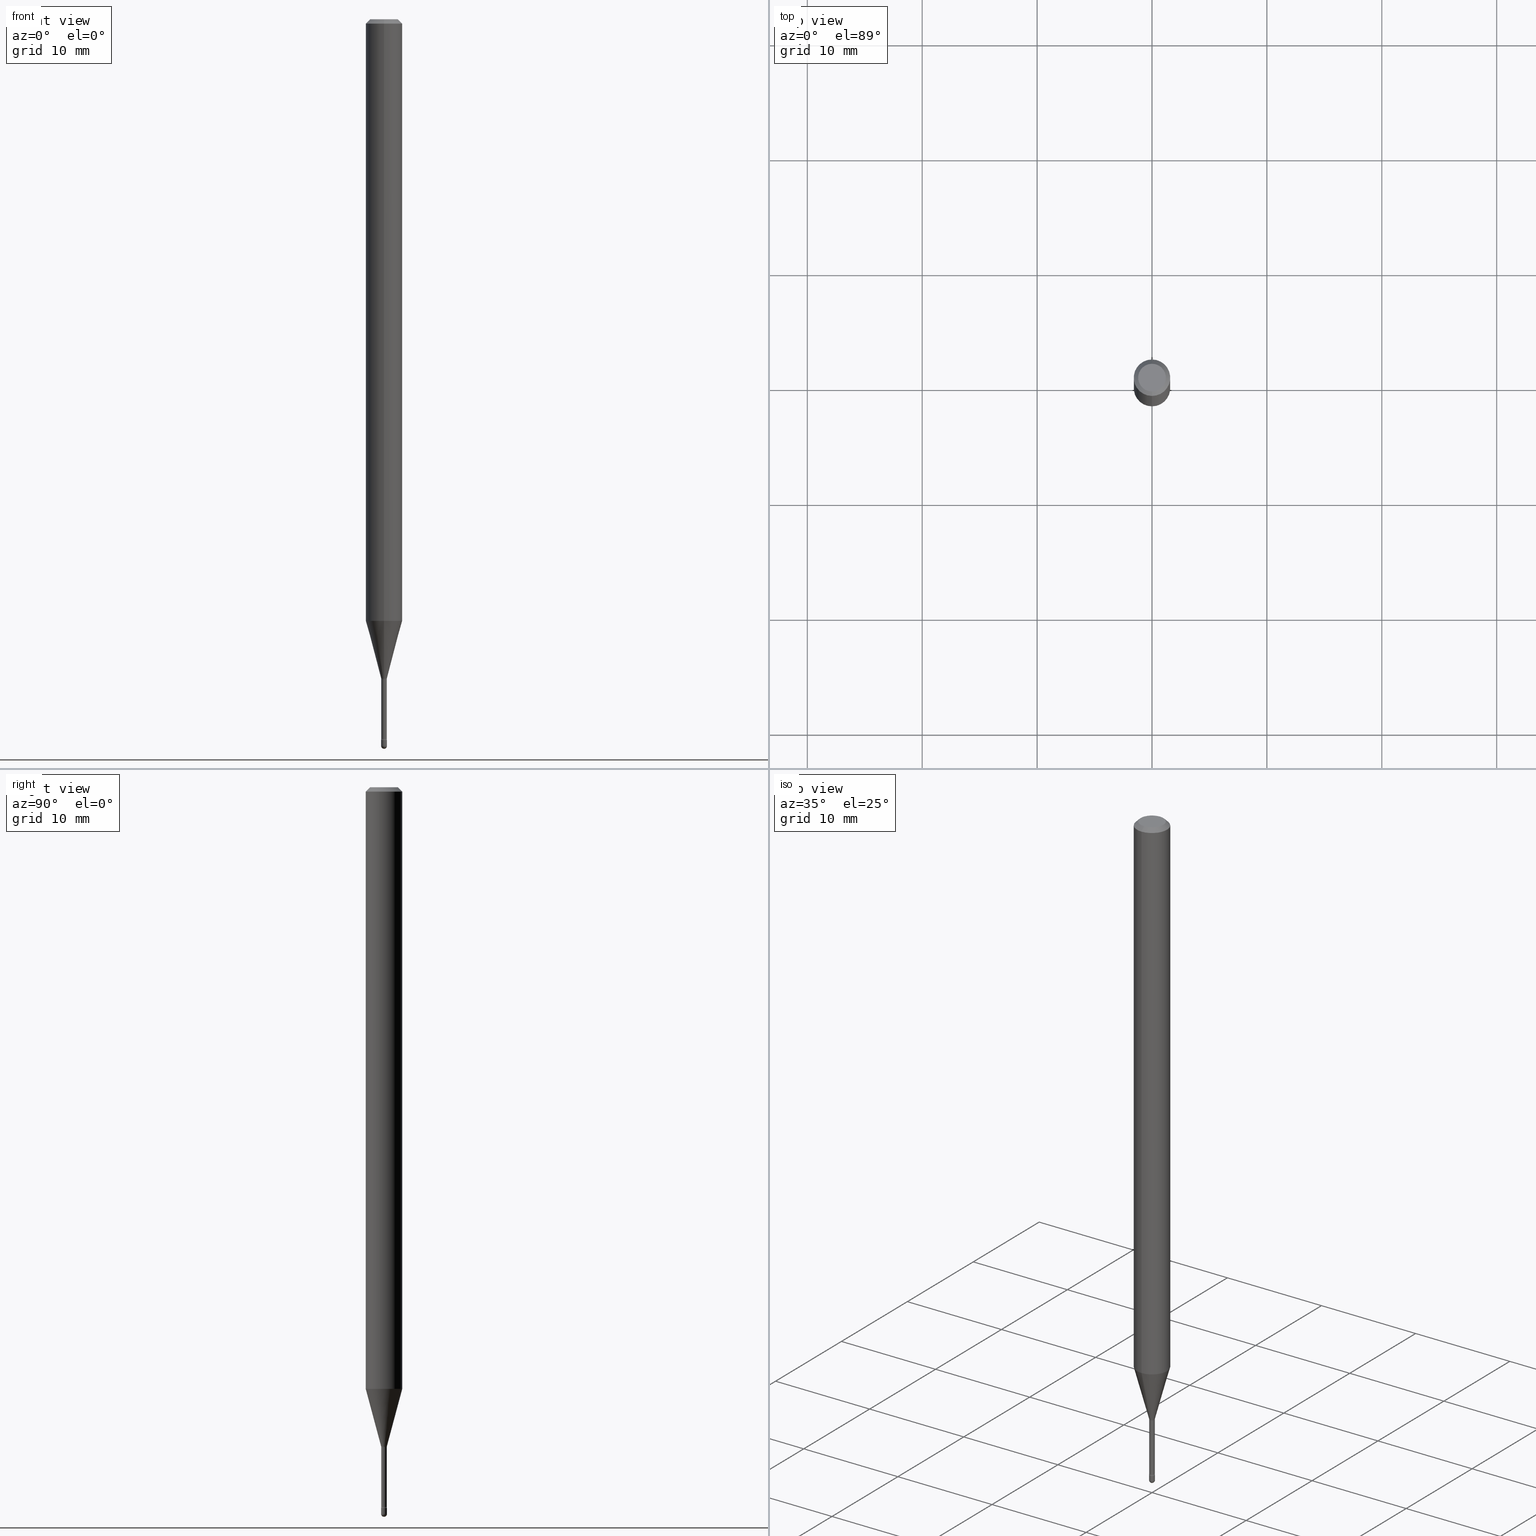
[diagram: canonical four-view strip — front | top / right | iso, engineering-drawing reading convention]
A machine part, canonical four-view strip (front | top / right | iso — engineering-drawing reading convention). The complete STEP part file that produces these views, byte-faithful:
ISO-10303-21;
HEADER;
FILE_DESCRIPTION (( 'STEP AP203' ),
    '1' );
FILE_NAME ('09420.STEP',
    '2024-04-09T22:57:26',
    ( '' ),
    ( '' ),
    'SwSTEP 2.0',
    'SolidWorks 2023',
    '' );
FILE_SCHEMA (( 'CONFIG_CONTROL_DESIGN' ));
ENDSEC;

DATA;
#1 = APPROVAL_STATUS ( 'not_yet_approved' ) ;
#2 = AXIS2_PLACEMENT_3D ( 'NONE', #159, #292, #75 ) ;
#3 = TOROIDAL_SURFACE ( 'NONE', #232, 0.02440000000000002583, 0.01500000000000000291 ) ;
#4 = ORGANIZATION ( 'UNSPECIFIED', 'UNSPECIFIED', '' ) ;
#5 = EDGE_LOOP ( 'NONE', ( #56, #181, #218, #357 ) ) ;
#6 = PERSON_AND_ORGANIZATION ( #463, #4 ) ;
#7 = DIRECTION ( 'NONE',  ( 2.445514680004829566E-29, -3.491415644922369221E-15, -1.000000000000000000 ) ) ;
#8 = CARTESIAN_POINT ( 'NONE',  ( 6.089217327400989947E-29, -8.693788533719431716E-15, -2.489999999999999769 ) ) ;
#9 = COORDINATED_UNIVERSAL_TIME_OFFSET ( 5, 0, .BEHIND. ) ;
#10 = UNCERTAINTY_MEASURE_WITH_UNIT (LENGTH_MEASURE( 1.000000000000000082E-05 ), #272, 'distance_accuracy_value', 'NONE');
#11 = EDGE_CURVE ( 'NONE', #446, #427, #172, .T. ) ;
#12 = APPROVAL ( #231, 'UNSPECIFIED' ) ;
#13 = DIRECTION ( 'NONE',  ( -2.445514680004829566E-29, 3.491415644922369221E-15, 1.000000000000000000 ) ) ;
#14 = DIRECTION ( 'NONE',  ( -2.445468806185136877E-29, 3.491481338843145188E-15, 1.000000000000000000 ) ) ;
#15 = CARTESIAN_POINT ( 'NONE',  ( 3.316907271900976096E-16, 0.04749999999999999362, 3.181938004541935619E-17 ) ) ;
#16 = CONICAL_SURFACE ( 'NONE', #384, 0.06250000000000000000, 0.7853981633974483900 ) ;
#17 = CARTESIAN_POINT ( 'NONE',  ( -1.703842893354895431E-16, -0.02440000000000789454, -2.261974787463811420 ) ) ;
#18 = CIRCLE ( 'NONE', #421, 0.009400000000000002104 ) ;
#19 = SECURITY_CLASSIFICATION_LEVEL ( 'unclassified' ) ;
#20 = CARTESIAN_POINT ( 'NONE',  ( -1.169113584055446105E-44, 1.669184350826100908E-30, 4.780733988912460139E-16 ) ) ;
#21 = PRODUCT_DEFINITION ( 'UNKNOWN', '', #112, #129 ) ;
#22 = CARTESIAN_POINT ( 'NONE',  ( 3.668272020007264791E-31, -5.237123467383583267E-17, -0.01500000000000008271 ) ) ;
#23 = LINE ( 'NONE', #405, #67 ) ;
#24 = DIRECTION ( 'NONE',  ( -1.000000000000000000, 6.982962677686265922E-15, -4.883557194083112340E-29 ) ) ;
#25 = DIRECTION ( 'NONE',  ( 1.839019923739601104E-15, 0.2588190451025250693, 0.9659258262890670910 ) ) ;
#26 = CIRCLE ( 'NONE', #345, 0.01000000000000008347 ) ;
#27 = ORIENTED_EDGE ( 'NONE', *, *, #46, .T. ) ;
#28 = AXIS2_PLACEMENT_3D ( 'NONE', #52, #513, #445 ) ;
#29 = DIRECTION ( 'NONE',  ( -2.445514680004829847E-29, 3.491415644922369221E-15, 1.000000000000000000 ) ) ;
#30 = PERSON_AND_ORGANIZATION ( #463, #4 ) ;
#31 = EDGE_LOOP ( 'NONE', ( #347, #134, #294, #448, #383 ) ) ;
#32 = EDGE_CURVE ( 'NONE', #271, #467, #98, .T. ) ;
#33 = DIRECTION ( 'NONE',  ( -2.445514680004829566E-29, 3.491415644922369221E-15, 1.000000000000000000 ) ) ;
#34 = CARTESIAN_POINT ( 'NONE',  ( 1.733724275255249028E-16, 0.02439999999999141814, -2.465800000000000214 ) ) ;
#35 = ORIENTED_EDGE ( 'NONE', *, *, #78, .T. ) ;
#36 = CARTESIAN_POINT ( 'NONE',  ( -6.982962677680226008E-17, -0.01000000000000862178, -2.470000000000000195 ) ) ;
#37 = ORIENTED_EDGE ( 'NONE', *, *, #422, .F. ) ;
#38 = AXIS2_PLACEMENT_3D ( 'NONE', #329, #489, #528 ) ;
#39 = CARTESIAN_POINT ( 'NONE',  ( 6.089217327400989947E-29, -8.693788533719431716E-15, -2.489999999999999769 ) ) ;
#40 = ADVANCED_FACE ( 'NONE', ( #192 ), #532, .T. ) ;
#41 = PLANE ( 'NONE',  #216 ) ;
#42 = EDGE_CURVE ( 'NONE', #446, #165, #535, .T. ) ;
#43 = EDGE_LOOP ( 'NONE', ( #171, #306, #524, #469 ) ) ;
#44 = DIRECTION ( 'NONE',  ( -2.445468806185136597E-29, 3.491481338843145583E-15, 1.000000000000000000 ) ) ;
#45 = ORIENTED_EDGE ( 'NONE', *, *, #42, .F. ) ;
#46 = EDGE_CURVE ( 'NONE', #74, #437, #301, .T. ) ;
#47 = ORIENTED_EDGE ( 'NONE', *, *, #341, .F. ) ;
#48 = FACE_OUTER_BOUND ( 'NONE', #547, .T. ) ;
#49 = EDGE_CURVE ( 'NONE', #74, #512, #363, .T. ) ;
#50 = LOCAL_TIME ( 18, 57, 26.00000000000000000, #153 ) ;
#51 = ORIENTED_EDGE ( 'NONE', *, *, #104, .T. ) ;
#52 = CARTESIAN_POINT ( 'NONE',  ( -1.169113584055446105E-44, 1.669184350826100908E-30, 4.780733988912460139E-16 ) ) ;
#53 = CARTESIAN_POINT ( 'NONE',  ( 6.030150097955909922E-29, -8.609132697249580284E-15, -2.465800000000000214 ) ) ;
#54 = VERTEX_POINT ( 'NONE', #97 ) ;
#55 = PERSON_AND_ORGANIZATION ( #463, #4 ) ;
#56 = ORIENTED_EDGE ( 'NONE', *, *, #61, .F. ) ;
#57 = APPROVAL_DATE_TIME ( #146, #562 ) ;
#58 = AXIS2_PLACEMENT_3D ( 'NONE', #68, #152, #317 ) ;
#59 = CIRCLE ( 'NONE', #147, 0.009400000000000024655 ) ;
#60 = DIRECTION ( 'NONE',  ( -2.445514680004829566E-29, 3.491415644922369221E-15, 1.000000000000000000 ) ) ;
#61 = EDGE_CURVE ( 'NONE', #54, #343, #498, .T. ) ;
#62 = COORDINATED_UNIVERSAL_TIME_OFFSET ( 5, 0, .BEHIND. ) ;
#63 = DIRECTION ( 'NONE',  ( -2.445514680004829566E-29, 3.491415644922369221E-15, 1.000000000000000000 ) ) ;
#64 = DIRECTION ( 'NONE',  ( 1.000000000000000000, -6.982962677686265922E-15, 4.876176775795935793E-29 ) ) ;
#65 = DIRECTION ( 'NONE',  ( 6.982962677686265922E-15, 1.000000000000000000, -3.483106191921935554E-15 ) ) ;
#66 = EDGE_CURVE ( 'NONE', #96, #165, #110, .T. ) ;
#67 = VECTOR ( 'NONE', #14, 39.37007874015748143 ) ;
#68 = CARTESIAN_POINT ( 'NONE',  ( 2.023886438444584858E-45, -2.888837706566762205E-31, -8.275015253278219790E-17 ) ) ;
#69 = CONICAL_SURFACE ( 'NONE', #141, 0.009911112605663982209, 0.2617993877991502960 ) ;
#70 = FACE_OUTER_BOUND ( 'NONE', #435, .T. ) ;
#71 = EDGE_CURVE ( 'NONE', #131, #437, #548, .T. ) ;
#72 = DIRECTION ( 'NONE',  ( -6.982962677686265922E-15, -1.000000000000000000, 3.491415644922369221E-15 ) ) ;
#73 = DIRECTION ( 'NONE',  ( -6.982962677686265922E-15, -1.000000000000000000, 3.491415644922369221E-15 ) ) ;
#74 = VERTEX_POINT ( 'NONE', #369 ) ;
#75 = DIRECTION ( 'NONE',  ( -7.105427357601000281E-15, -1.000000000000000000, 0.000000000000000000 ) ) ;
#76 = AXIS2_PLACEMENT_3D ( 'NONE', #148, #452, #404 ) ;
#77 = CC_DESIGN_APPROVAL ( #335, ( #112 ) ) ;
#78 = EDGE_CURVE ( 'NONE', #96, #54, #309, .T. ) ;
#79 = ORIENTED_EDGE ( 'NONE', *, *, #124, .T. ) ;
#80 = CARTESIAN_POINT ( 'NONE',  ( 7.042269065260420504E-17, 0.009911112605656097890, -2.258092501787273498 ) ) ;
#81 = CARTESIAN_POINT ( 'NONE',  ( -7.105427357594942569E-17, -0.01000000000000873281, -2.489999999999999769 ) ) ;
#82 = CC_DESIGN_PERSON_AND_ORGANIZATION_ASSIGNMENT ( #6, #252, ( #112 ) ) ;
#83 = ORIENTED_EDGE ( 'NONE', *, *, #316, .F. ) ;
#84 = VECTOR ( 'NONE', #29, 39.37007874015748143 ) ;
#85 = VECTOR ( 'NONE', #168, 39.37007874015748143 ) ;
#86 = CC_DESIGN_APPROVAL ( #12, ( #208 ) ) ;
#87 = EDGE_LOOP ( 'NONE', ( #90, #248, #115, #351, #177 ) ) ;
#88 = CARTESIAN_POINT ( 'NONE',  ( 5.522198361929608993E-29, -7.883939488421979376E-15, -2.258092501787273498 ) ) ;
#89 = DIRECTION ( 'NONE',  ( 1.000000000000000000, -6.982962677686235945E-15, 0.000000000000000000 ) ) ;
#90 = ORIENTED_EDGE ( 'NONE', *, *, #176, .T. ) ;
#91 = CYLINDRICAL_SURFACE ( 'NONE', #28, 0.009400000000000012512 ) ;
#92 = EDGE_LOOP ( 'NONE', ( #137, #304, #542, #397 ) ) ;
#93 = CARTESIAN_POINT ( 'NONE',  ( 6.982962677692383094E-17, 0.009999999999991347407, -2.489999999999999769 ) ) ;
#94 = AXIS2_PLACEMENT_3D ( 'NONE', #186, #44, #178 ) ;
#95 = EDGE_LOOP ( 'NONE', ( #45, #142, #273, #228 ) ) ;
#96 = VERTEX_POINT ( 'NONE', #496 ) ;
#97 = CARTESIAN_POINT ( 'NONE',  ( -3.773273898774340269E-16, -0.04749999999999999362, 8.309209060103030462E-17 ) ) ;
#98 = CIRCLE ( 'NONE', #223, 0.01000000000000000021 ) ;
#99 = FACE_OUTER_BOUND ( 'NONE', #43, .T. ) ;
#100 = VECTOR ( 'NONE', #315, 39.37007874015748143 ) ;
#101 = DIRECTION ( 'NONE',  ( -2.445514680004829566E-29, 3.491415644922369221E-15, 1.000000000000000000 ) ) ;
#102 = CARTESIAN_POINT ( 'NONE',  ( -4.364351673553412809E-16, -0.06250000000000720257, -2.061828102118093309 ) ) ;
#103 = DIRECTION ( 'NONE',  ( -6.982962677686265133E-15, -1.000000000000000000, 0.000000000000000000 ) ) ;
#104 = EDGE_CURVE ( 'NONE', #343, #165, #127, .T. ) ;
#105 = DATE_AND_TIME ( #235, #550 ) ;
#106 = FACE_OUTER_BOUND ( 'NONE', #215, .T. ) ;
#107 = SPHERICAL_SURFACE ( 'NONE', #419, 0.01000000000000008347 ) ;
#108 = CALENDAR_DATE ( 2024, 9, 4 ) ;
#109 = CIRCLE ( 'NONE', #2, 0.01000000000000008347 ) ;
#110 = LINE ( 'NONE', #200, #117 ) ;
#111 = CIRCLE ( 'NONE', #523, 0.01000000000000000021 ) ;
#112 = PRODUCT_DEFINITION_FORMATION_WITH_SPECIFIED_SOURCE ( 'ANY', '', #179, .NOT_KNOWN. ) ;
#113 = DIRECTION ( 'NONE',  ( -6.982962677686265922E-15, -1.000000000000000000, 0.000000000000000000 ) ) ;
#114 = CARTESIAN_POINT ( 'NONE',  ( 6.040307951277287977E-29, -8.623958906942569995E-15, -2.470000000000000195 ) ) ;
#115 = ORIENTED_EDGE ( 'NONE', *, *, #307, .F. ) ;
#116 = ADVANCED_FACE ( 'NONE', ( #457 ), #324, .T. ) ;
#117 = VECTOR ( 'NONE', #402, 39.37007874015748143 ) ;
#118 = AXIS2_PLACEMENT_3D ( 'NONE', #214, #167, #510 ) ;
#119 = ORIENTED_EDGE ( 'NONE', *, *, #133, .F. ) ;
#120 = CC_DESIGN_APPROVAL ( #562, ( #21 ) ) ;
#121 = CARTESIAN_POINT ( 'NONE',  ( 6.040307951277287977E-29, -8.623958906942569995E-15, -2.470000000000000195 ) ) ;
#122 = ORIENTED_EDGE ( 'NONE', *, *, #124, .F. ) ;
#123 = ADVANCED_FACE ( 'NONE', ( #461 ), #107, .T. ) ;
#124 = EDGE_CURVE ( 'NONE', #262, #395, #442, .T. ) ;
#125 = DIRECTION ( 'NONE',  ( 1.000000000000000000, -6.982962677686265922E-15, 4.876176775795935793E-29 ) ) ;
#126 = ORIENTED_EDGE ( 'NONE', *, *, #32, .F. ) ;
#127 = CIRCLE ( 'NONE', #372, 0.06250000000000000000 ) ;
#128 = AXIS2_PLACEMENT_3D ( 'NONE', #39, #24, #374 ) ;
#129 = DESIGN_CONTEXT ( 'detailed design', #546, 'design' ) ;
#130 = DIRECTION ( 'NONE',  ( -6.982962677686265922E-15, -1.000000000000000000, 0.000000000000000000 ) ) ;
#131 = VERTEX_POINT ( 'NONE', #155 ) ;
#132 = MECHANICAL_CONTEXT ( 'NONE', #332, 'mechanical' ) ;
#133 = EDGE_CURVE ( 'NONE', #220, #511, #26, .T. ) ;
#134 = ORIENTED_EDGE ( 'NONE', *, *, #32, .T. ) ;
#135 = ADVANCED_BREP_SHAPE_REPRESENTATION ( '09420', ( #559, #195, #188 ), #364 ) ;
#136 =( NAMED_UNIT ( * ) PLANE_ANGLE_UNIT ( ) SI_UNIT ( $, .RADIAN. ) );
#137 = ORIENTED_EDGE ( 'NONE', *, *, #394, .F. ) ;
#138 = PRODUCT_DEFINITION_SHAPE ( 'NONE', 'NONE',  #21 ) ;
#139 = AXIS2_PLACEMENT_3D ( 'NONE', #366, #256, #298 ) ;
#140 =( NAMED_UNIT ( * ) SI_UNIT ( $, .STERADIAN. ) SOLID_ANGLE_UNIT ( ) );
#141 = AXIS2_PLACEMENT_3D ( 'NONE', #352, #263, #170 ) ;
#142 = ORIENTED_EDGE ( 'NONE', *, *, #11, .T. ) ;
#143 = DIRECTION ( 'NONE',  ( 6.982962677686265922E-15, 1.000000000000000000, 0.000000000000000000 ) ) ;
#144 = CARTESIAN_POINT ( 'NONE',  ( 3.668272020007264791E-31, -5.237123467383583267E-17, -0.01500000000000008271 ) ) ;
#145 = DIRECTION ( 'NONE',  ( -2.445514680004829566E-29, 3.491415644922369221E-15, 1.000000000000000000 ) ) ;
#146 = DATE_AND_TIME ( #276, #268 ) ;
#147 = AXIS2_PLACEMENT_3D ( 'NONE', #491, #501, #113 ) ;
#148 = CARTESIAN_POINT ( 'NONE',  ( 5.531588783120004822E-29, -7.897642759363587821E-15, -2.261974787463811420 ) ) ;
#149 = FACE_OUTER_BOUND ( 'NONE', #312, .T. ) ;
#150 = EDGE_CURVE ( 'NONE', #230, #519, #23, .T. ) ;
#151 = DIRECTION ( 'NONE',  ( 2.445514680004829566E-29, -3.491415644922369221E-15, -1.000000000000000000 ) ) ;
#152 = DIRECTION ( 'NONE',  ( -2.445514680004829566E-29, 3.491415644922369221E-15, 1.000000000000000000 ) ) ;
#153 = COORDINATED_UNIVERSAL_TIME_OFFSET ( 5, 0, .BEHIND. ) ;
#154 = CARTESIAN_POINT ( 'NONE',  ( 7.105427357607040490E-17, 0.009999999999991376898, -2.470000000000000195 ) ) ;
#155 = CARTESIAN_POINT ( 'NONE',  ( 6.679101716150980493E-17, 0.009399999999992103908, -2.261974787463811420 ) ) ;
#156 = DIRECTION ( 'NONE',  ( 1.000000000000000000, -7.105427357601001070E-15, 4.926314704023584056E-29 ) ) ;
#157 = CIRCLE ( 'NONE', #258, 0.04749999999999999362 ) ;
#158 = CARTESIAN_POINT ( 'NONE',  ( 6.679101716144950638E-17, 0.009400000000000012512, 4.452540918289757249E-16 ) ) ;
#159 = CARTESIAN_POINT ( 'NONE',  ( 6.089217327400989947E-29, -8.693788533719431716E-15, -2.489999999999999769 ) ) ;
#160 = ORIENTED_EDGE ( 'NONE', *, *, #11, .F. ) ;
#161 = CARTESIAN_POINT ( 'NONE',  ( -0.01000000000000000021, -8.587819446754991563E-15, -2.489999999999999769 ) ) ;
#162 = EDGE_LOOP ( 'NONE', ( #222, #545, #389, #508 ) ) ;
#163 = CIRCLE ( 'NONE', #139, 0.01000000000000000021 ) ;
#164 = ADVANCED_FACE ( 'NONE', ( #149 ), #16, .T. ) ;
#165 = VERTEX_POINT ( 'NONE', #239 ) ;
#166 = FACE_OUTER_BOUND ( 'NONE', #92, .T. ) ;
#167 = DIRECTION ( 'NONE',  ( -2.445514680004829566E-29, 3.491415644922369221E-15, 1.000000000000000000 ) ) ;
#168 = DIRECTION ( 'NONE',  ( -2.445514680004829847E-29, 3.491415644922369221E-15, 1.000000000000000000 ) ) ;
#169 = ORIENTED_EDGE ( 'NONE', *, *, #418, .F. ) ;
#170 = DIRECTION ( 'NONE',  ( -6.982962677686264344E-15, -1.000000000000000000, 0.000000000000000000 ) ) ;
#171 = ORIENTED_EDGE ( 'NONE', *, *, #500, .F. ) ;
#172 = CIRCLE ( 'NONE', #275, 0.06250000000000000000 ) ;
#173 = AXIS2_PLACEMENT_3D ( 'NONE', #396, #560, #565 ) ;
#174 = AXIS2_PLACEMENT_3D ( 'NONE', #243, #362, #407 ) ;
#175 = DIRECTION ( 'NONE',  ( -2.445514680004829566E-29, 3.491415644922369221E-15, 1.000000000000000000 ) ) ;
#176 = EDGE_CURVE ( 'NONE', #511, #271, #163, .T. ) ;
#177 = ORIENTED_EDGE ( 'NONE', *, *, #341, .T. ) ;
#178 = DIRECTION ( 'NONE',  ( 1.000000000000000000, -6.982962677686235945E-15, 0.000000000000000000 ) ) ;
#179 = PRODUCT ( '09420', '09420', '', ( #132 ) ) ;
#180 = CARTESIAN_POINT ( 'NONE',  ( 0.000000000000000000, 0.000000000000000000, 0.000000000000000000 ) ) ;
#181 = ORIENTED_EDGE ( 'NONE', *, *, #78, .F. ) ;
#182 = PERSON_AND_ORGANIZATION ( #463, #4 ) ;
#183 = ORIENTED_EDGE ( 'NONE', *, *, #408, .F. ) ;
#184 = EDGE_CURVE ( 'NONE', #512, #446, #296, .T. ) ;
#185 = AXIS2_PLACEMENT_3D ( 'NONE', #371, #145, #459 ) ;
#186 = CARTESIAN_POINT ( 'NONE',  ( 6.089217327400989947E-29, -8.693788533719431716E-15, -2.489999999999999769 ) ) ;
#187 = CIRCLE ( 'NONE', #373, 0.01500000000000002373 ) ;
#188 = AXIS2_PLACEMENT_3D ( 'NONE', #219, #260, #436 ) ;
#189 = VERTEX_POINT ( 'NONE', #247 ) ;
#190 = APPROVAL_ROLE ( '' ) ;
#191 = DIRECTION ( 'NONE',  ( -2.445514680004829566E-29, 3.491415644922369221E-15, 1.000000000000000000 ) ) ;
#192 = FACE_OUTER_BOUND ( 'NONE', #95, .T. ) ;
#193 = COORDINATED_UNIVERSAL_TIME_OFFSET ( 5, 0, .BEHIND. ) ;
#194 = CARTESIAN_POINT ( 'NONE',  ( 6.089217327400989947E-29, -8.693788533719431716E-15, -2.489999999999999769 ) ) ;
#195 = MANIFOLD_SOLID_BREP ( 'Body-Move/Copy2[2]', #318 ) ;
#196 = PERSON_AND_ORGANIZATION ( #463, #4 ) ;
#197 = CIRCLE ( 'NONE', #412, 0.009400000000000024655 ) ;
#198 = CARTESIAN_POINT ( 'NONE',  ( -6.563984917019559422E-17, -0.009400000000007898565, -2.261974787463811420 ) ) ;
#199 = CC_DESIGN_SECURITY_CLASSIFICATION ( #208, ( #112 ) ) ;
#200 = CARTESIAN_POINT ( 'NONE',  ( 4.364351673553919652E-16, 0.06249999999999995143, -0.01500000000000030129 ) ) ;
#201 = DATE_TIME_ROLE ( 'creation_date' ) ;
#202 = PLANE ( 'NONE',  #355 ) ;
#203 = CARTESIAN_POINT ( 'NONE',  ( -4.287811248607203282E-16, -0.06250000000000005551, -0.01499999999999986587 ) ) ;
#204 = DIRECTION ( 'NONE',  ( 6.982962677686265922E-15, 1.000000000000000000, -3.483106191921935554E-15 ) ) ;
#205 = DIRECTION ( 'NONE',  ( -6.982962677686265922E-15, -1.000000000000000000, 4.370956789862821150E-15 ) ) ;
#206 = DIRECTION ( 'NONE',  ( 1.000000000000000000, -6.982962677686235945E-15, 0.000000000000000000 ) ) ;
#207 = AXIS2_PLACEMENT_3D ( 'NONE', #356, #477, #390 ) ;
#208 = SECURITY_CLASSIFICATION ( '', '', #19 ) ;
#209 = ORIENTED_EDGE ( 'NONE', *, *, #314, .F. ) ;
#210 = PERSON_AND_ORGANIZATION_ROLE ( 'creator' ) ;
#211 = ORIENTED_EDGE ( 'NONE', *, *, #289, .T. ) ;
#212 = DIRECTION ( 'NONE',  ( -6.982962677686265922E-15, -1.000000000000000000, 3.491415644922369221E-15 ) ) ;
#213 = ADVANCED_FACE ( 'NONE', ( #339 ), #426, .T. ) ;
#214 = CARTESIAN_POINT ( 'NONE',  ( 5.042230891376295236E-29, -7.198698892875708228E-15, -2.061828102118093753 ) ) ;
#215 = EDGE_LOOP ( 'NONE', ( #35, #555 ) ) ;
#216 = AXIS2_PLACEMENT_3D ( 'NONE', #114, #217, #125 ) ;
#217 = DIRECTION ( 'NONE',  ( -2.438088387897960049E-29, 3.491481338843145188E-15, 1.000000000000000000 ) ) ;
#218 = ORIENTED_EDGE ( 'NONE', *, *, #66, .T. ) ;
#219 = CARTESIAN_POINT ( 'NONE',  ( 0.000000000000000000, 0.000000000000000000, 0.000000000000000000 ) ) ;
#220 = VERTEX_POINT ( 'NONE', #433 ) ;
#221 = LENGTH_MEASURE_WITH_UNIT ( LENGTH_MEASURE( 0.02539999999999999897 ), #305 );
#222 = ORIENTED_EDGE ( 'NONE', *, *, #325, .F. ) ;
#223 = AXIS2_PLACEMENT_3D ( 'NONE', #194, #410, #242 ) ;
#224 = AXIS2_PLACEMENT_3D ( 'NONE', #88, #175, #486 ) ;
#225 = ORIENTED_EDGE ( 'NONE', *, *, #254, .F. ) ;
#226 = DIRECTION ( 'NONE',  ( -6.982962677686264344E-15, -1.000000000000000000, 0.000000000000000000 ) ) ;
#227 = CC_DESIGN_PERSON_AND_ORGANIZATION_ASSIGNMENT ( #182, #554, ( #179 ) ) ;
#228 = ORIENTED_EDGE ( 'NONE', *, *, #428, .F. ) ;
#229 = CARTESIAN_POINT ( 'NONE',  ( 2.572559502513586973E-16, 0.009911112605656097890, -2.258092501787273498 ) ) ;
#230 = VERTEX_POINT ( 'NONE', #376 ) ;
#231 = APPROVAL_STATUS ( 'not_yet_approved' ) ;
#232 = AXIS2_PLACEMENT_3D ( 'NONE', #295, #33, #212 ) ;
#233 = DIRECTION ( 'NONE',  ( -6.982962677686265922E-15, -1.000000000000000000, 3.491415644922369221E-15 ) ) ;
#234 = CARTESIAN_POINT ( 'NONE',  ( 3.668272020007264791E-31, -5.237123467383583267E-17, -0.01500000000000008271 ) ) ;
#235 = CALENDAR_DATE ( 2024, 9, 4 ) ;
#236 = DIRECTION ( 'NONE',  ( -6.982962677686265922E-15, -1.000000000000000000, 3.483106191921935554E-15 ) ) ;
#237 = DIRECTION ( 'NONE',  ( -1.000000000000000000, 6.982962677686265922E-15, -4.883557194083112340E-29 ) ) ;
#238 = PERSON_AND_ORGANIZATION ( #463, #4 ) ;
#239 = CARTESIAN_POINT ( 'NONE',  ( 4.440892098501133005E-16, 0.06249999999999995143, -0.01500000000000030129 ) ) ;
#240 = AXIS2_PLACEMENT_3D ( 'NONE', #382, #293, #466 ) ;
#241 = DIRECTION ( 'NONE',  ( 7.105427357600999492E-15, 1.000000000000000000, 0.000000000000000000 ) ) ;
#242 = DIRECTION ( 'NONE',  ( 1.000000000000000000, -6.982962677686235945E-15, 0.000000000000000000 ) ) ;
#243 = CARTESIAN_POINT ( 'NONE',  ( 5.531588783120004822E-29, -7.897642759363587821E-15, -2.261974787463811420 ) ) ;
#244 = ADVANCED_FACE ( 'NONE', ( #251 ), #41, .T. ) ;
#245 = DIRECTION ( 'NONE',  ( -2.445514680004829847E-29, 3.491415644922369221E-15, 1.000000000000000000 ) ) ;
#246 = EDGE_CURVE ( 'NONE', #220, #467, #109, .T. ) ;
#247 = CARTESIAN_POINT ( 'NONE',  ( -6.563984917019076245E-17, -0.009400000000008634088, -2.465800000000000214 ) ) ;
#248 = ORIENTED_EDGE ( 'NONE', *, *, #393, .T. ) ;
#249 = CLOSED_SHELL ( 'NONE', ( #116, #470, #244, #123, #342 ) ) ;
#250 = VECTOR ( 'NONE', #493, 39.37007874015748143 ) ;
#251 = FACE_OUTER_BOUND ( 'NONE', #377, .T. ) ;
#252 = PERSON_AND_ORGANIZATION_ROLE ( 'creator' ) ;
#253 = EDGE_CURVE ( 'NONE', #427, #343, #429, .T. ) ;
#254 = EDGE_CURVE ( 'NONE', #481, #395, #474, .T. ) ;
#255 = ADVANCED_FACE ( 'NONE', ( #379 ), #299, .T. ) ;
#256 = DIRECTION ( 'NONE',  ( -2.445468806185136597E-29, 3.491481338843145583E-15, 1.000000000000000000 ) ) ;
#257 = ORIENTED_EDGE ( 'NONE', *, *, #104, .F. ) ;
#258 = AXIS2_PLACEMENT_3D ( 'NONE', #279, #13, #282 ) ;
#259 = ORIENTED_EDGE ( 'NONE', *, *, #520, .F. ) ;
#260 = DIRECTION ( 'NONE',  ( 0.000000000000000000, 0.000000000000000000, 1.000000000000000000 ) ) ;
#261 = CC_DESIGN_DATE_AND_TIME_ASSIGNMENT ( #361, #287, ( #208 ) ) ;
#262 = VERTEX_POINT ( 'NONE', #36 ) ;
#263 = DIRECTION ( 'NONE',  ( -2.445514680004829566E-29, 3.491415644922369221E-15, 1.000000000000000000 ) ) ;
#264 = FACE_OUTER_BOUND ( 'NONE', #31, .T. ) ;
#265 = ORIENTED_EDGE ( 'NONE', *, *, #307, .T. ) ;
#266 = ORIENTED_EDGE ( 'NONE', *, *, #49, .F. ) ;
#267 = AXIS2_PLACEMENT_3D ( 'NONE', #368, #191, #527 ) ;
#268 = LOCAL_TIME ( 18, 57, 26.00000000000000000, #449 ) ;
#269 = DIRECTION ( 'NONE',  ( -2.445514680004829566E-29, 3.491415644922369221E-15, 1.000000000000000000 ) ) ;
#270 = CC_DESIGN_DATE_AND_TIME_ASSIGNMENT ( #400, #201, ( #21 ) ) ;
#271 = VERTEX_POINT ( 'NONE', #161 ) ;
#272 =( CONVERSION_BASED_UNIT ( 'INCH', #221 ) LENGTH_UNIT ( ) NAMED_UNIT ( #425 ) );
#273 = ORIENTED_EDGE ( 'NONE', *, *, #253, .T. ) ;
#274 = DIRECTION ( 'NONE',  ( -4.851104656540964275E-15, -0.7071067811865500152, -0.7071067811865450192 ) ) ;
#275 = AXIS2_PLACEMENT_3D ( 'NONE', #308, #485, #205 ) ;
#276 = CALENDAR_DATE ( 2024, 9, 4 ) ;
#277 = CONICAL_SURFACE ( 'NONE', #337, 0.009911112605663982209, 0.2617993877991502960 ) ;
#278 = LOCAL_TIME ( 18, 57, 26.00000000000000000, #193 ) ;
#279 = CARTESIAN_POINT ( 'NONE',  ( 2.023886438444584858E-45, -2.888837706566762205E-31, -8.275015253278219790E-17 ) ) ;
#280 = DIRECTION ( 'NONE',  ( 6.982962677686265133E-15, 1.000000000000000000, 0.000000000000000000 ) ) ;
#281 = PERSON_AND_ORGANIZATION ( #463, #4 ) ;
#282 = DIRECTION ( 'NONE',  ( -6.982962677686266711E-15, -1.000000000000000000, 3.491415644922368827E-15 ) ) ;
#283 = DIRECTION ( 'NONE',  ( -2.445514680004829566E-29, 3.491415644922369221E-15, 1.000000000000000000 ) ) ;
#284 = CALENDAR_DATE ( 2024, 9, 4 ) ;
#285 = CARTESIAN_POINT ( 'NONE',  ( 1.733724275255197259E-16, 0.02439999999999210162, -2.261974787463811420 ) ) ;
#286 = DIRECTION ( 'NONE',  ( -6.982962677686265922E-15, -1.000000000000000000, 0.000000000000000000 ) ) ;
#287 = DATE_TIME_ROLE ( 'classification_date' ) ;
#288 = AXIS2_PLACEMENT_3D ( 'NONE', #478, #561, #89 ) ;
#289 = EDGE_CURVE ( 'NONE', #427, #446, #514, .T. ) ;
#290 = DIRECTION ( 'NONE',  ( -6.982962677686265922E-15, -1.000000000000000000, 3.483106191921935554E-15 ) ) ;
#291 = DIRECTION ( 'NONE',  ( 6.982962677686265922E-15, 1.000000000000000000, -3.491415644922369221E-15 ) ) ;
#292 = DIRECTION ( 'NONE',  ( -1.000000000000000000, 7.105427357601001070E-15, -4.926315508542082329E-29 ) ) ;
#293 = DIRECTION ( 'NONE',  ( -1.000000000000000000, 6.982962677686265922E-15, -4.883557194083112340E-29 ) ) ;
#294 = ORIENTED_EDGE ( 'NONE', *, *, #520, .T. ) ;
#295 = CARTESIAN_POINT ( 'NONE',  ( 6.030036982291310238E-29, -8.609294685319429365E-15, -2.465800000000000214 ) ) ;
#296 = LINE ( 'NONE', #80, #460 ) ;
#297 = ORIENTED_EDGE ( 'NONE', *, *, #246, .F. ) ;
#298 = DIRECTION ( 'NONE',  ( 1.000000000000000000, -6.982962677686235945E-15, 0.000000000000000000 ) ) ;
#299 = CYLINDRICAL_SURFACE ( 'NONE', #330, 0.009400000000000012512 ) ;
#300 = ORIENTED_EDGE ( 'NONE', *, *, #253, .F. ) ;
#301 = CIRCLE ( 'NONE', #522, 0.01500000000000002373 ) ;
#302 = CIRCLE ( 'NONE', #288, 0.01000000000000000021 ) ;
#303 = ORIENTED_EDGE ( 'NONE', *, *, #500, .T. ) ;
#304 = ORIENTED_EDGE ( 'NONE', *, *, #254, .T. ) ;
#305 =( LENGTH_UNIT ( ) NAMED_UNIT ( * ) SI_UNIT ( $, .METRE. ) );
#306 = ORIENTED_EDGE ( 'NONE', *, *, #408, .T. ) ;
#307 = EDGE_CURVE ( 'NONE', #519, #392, #111, .T. ) ;
#308 = CARTESIAN_POINT ( 'NONE',  ( 5.042230891376295236E-29, -7.198698892875708228E-15, -2.061828102118093753 ) ) ;
#309 = CIRCLE ( 'NONE', #58, 0.04749999999999999362 ) ;
#310 = AXIS2_PLACEMENT_3D ( 'NONE', #331, #365, #233 ) ;
#311 = APPROVAL_PERSON_ORGANIZATION ( #238, #12, #190 ) ;
#312 = EDGE_LOOP ( 'NONE', ( #336, #564, #51, #480 ) ) ;
#313 = LINE ( 'NONE', #506, #475 ) ;
#314 = EDGE_CURVE ( 'NONE', #189, #437, #313, .T. ) ;
#315 = DIRECTION ( 'NONE',  ( -1.807323732225330928E-15, -0.2588190451025182970, 0.9659258262890689783 ) ) ;
#316 = EDGE_CURVE ( 'NONE', #437, #131, #18, .T. ) ;
#317 = DIRECTION ( 'NONE',  ( -6.982962677686266711E-15, -1.000000000000000000, 3.491415644922368827E-15 ) ) ;
#318 = CLOSED_SHELL ( 'NONE', ( #434, #255, #487, #164, #213, #507, #539, #40, #387, #406, #403, #479, #515, #378 ) ) ;
#319 = TOROIDAL_SURFACE ( 'NONE', #174, 0.02439999999999999808, 0.01500000000000002200 ) ;
#320 = APPROVAL_DATE_TIME ( #529, #335 ) ;
#321 = DIRECTION ( 'NONE',  ( 1.000000000000000000, -6.982962677686265922E-15, 4.876176775795935793E-29 ) ) ;
#322 = CARTESIAN_POINT ( 'NONE',  ( 3.668272020007264791E-31, -5.237123467383583267E-17, -0.01500000000000008271 ) ) ;
#323 = CARTESIAN_POINT ( 'NONE',  ( -0.01000000000000000021, -8.587819446754991563E-15, -2.470000000000000195 ) ) ;
#324 = CYLINDRICAL_SURFACE ( 'NONE', #509, 0.01000000000000000021 ) ;
#325 = EDGE_CURVE ( 'NONE', #481, #131, #386, .T. ) ;
#326 = EDGE_CURVE ( 'NONE', #189, #262, #556, .T. ) ;
#327 = PERSON_AND_ORGANIZATION_ROLE ( 'classification_officer' ) ;
#328 = FACE_OUTER_BOUND ( 'NONE', #518, .T. ) ;
#329 = CARTESIAN_POINT ( 'NONE',  ( 5.531692548543555666E-29, -7.897494161371103074E-15, -2.261974787463811420 ) ) ;
#330 = AXIS2_PLACEMENT_3D ( 'NONE', #333, #502, #416 ) ;
#331 = CARTESIAN_POINT ( 'NONE',  ( 6.982962677692306673E-17, 0.009999999999991375163, -2.470000000000000195 ) ) ;
#332 = APPLICATION_CONTEXT ( 'configuration controlled 3d designs of mechanical parts and assemblies' ) ;
#333 = CARTESIAN_POINT ( 'NONE',  ( -1.169113584055446105E-44, 1.669184350826100908E-30, 4.780733988912460139E-16 ) ) ;
#334 = EDGE_CURVE ( 'NONE', #189, #481, #197, .T. ) ;
#335 = APPROVAL ( #533, 'UNSPECIFIED' ) ;
#336 = ORIENTED_EDGE ( 'NONE', *, *, #440, .F. ) ;
#337 = AXIS2_PLACEMENT_3D ( 'NONE', #525, #269, #226 ) ;
#338 = CARTESIAN_POINT ( 'NONE',  ( 5.531692548543555666E-29, -7.897494161371103074E-15, -2.261974787463811420 ) ) ;
#339 = FACE_OUTER_BOUND ( 'NONE', #526, .T. ) ;
#340 = DIRECTION ( 'NONE',  ( -2.445468806185136597E-29, 3.491481338843145583E-15, 1.000000000000000000 ) ) ;
#341 = EDGE_CURVE ( 'NONE', #230, #511, #302, .T. ) ;
#342 = ADVANCED_FACE ( 'NONE', ( #264 ), #438, .T. ) ;
#343 = VERTEX_POINT ( 'NONE', #456 ) ;
#344 = APPLICATION_PROTOCOL_DEFINITION ( 'international standard', 'config_control_design', 1994, #332 ) ;
#345 = AXIS2_PLACEMENT_3D ( 'NONE', #415, #413, #280 ) ;
#346 = TOROIDAL_SURFACE ( 'NONE', #76, 0.02439999999999999808, 0.01500000000000002200 ) ;
#347 = ORIENTED_EDGE ( 'NONE', *, *, #393, .F. ) ;
#348 = FACE_OUTER_BOUND ( 'NONE', #162, .T. ) ;
#349 = ORIENTED_EDGE ( 'NONE', *, *, #316, .T. ) ;
#350 = FACE_OUTER_BOUND ( 'NONE', #488, .T. ) ;
#351 = ORIENTED_EDGE ( 'NONE', *, *, #150, .F. ) ;
#352 = CARTESIAN_POINT ( 'NONE',  ( 5.522198361929608993E-29, -7.883939488421979376E-15, -2.258092501787273498 ) ) ;
#353 = ORIENTED_EDGE ( 'NONE', *, *, #334, .F. ) ;
#354 = AXIS2_PLACEMENT_3D ( 'NONE', #541, #552, #73 ) ;
#355 = AXIS2_PLACEMENT_3D ( 'NONE', #15, #151, #291 ) ;
#356 = CARTESIAN_POINT ( 'NONE',  ( 6.030036982291310238E-29, -8.609294685319429365E-15, -2.465800000000000214 ) ) ;
#357 = ORIENTED_EDGE ( 'NONE', *, *, #428, .T. ) ;
#358 = APPROVAL_DATE_TIME ( #105, #12 ) ;
#359 = PLANE ( 'NONE',  #310 ) ;
#360 = CARTESIAN_POINT ( 'NONE',  ( 4.440892098500625669E-16, 0.06250000000000000000, 2.598599210835979869E-16 ) ) ;
#361 = DATE_AND_TIME ( #497, #423 ) ;
#362 = DIRECTION ( 'NONE',  ( -2.445514680004829566E-29, 3.491415644922369221E-15, 1.000000000000000000 ) ) ;
#363 = CIRCLE ( 'NONE', #185, 0.009911112605663982209 ) ;
#364 =( GEOMETRIC_REPRESENTATION_CONTEXT ( 3 ) GLOBAL_UNCERTAINTY_ASSIGNED_CONTEXT ( ( #10 ) ) GLOBAL_UNIT_ASSIGNED_CONTEXT ( ( #272, #136, #140 ) ) REPRESENTATION_CONTEXT ( 'NONE', 'WORKASPACE' ) );
#365 = DIRECTION ( 'NONE',  ( -2.445514680004829566E-29, 3.491415644922369221E-15, 1.000000000000000000 ) ) ;
#366 = CARTESIAN_POINT ( 'NONE',  ( 6.089217327400989947E-29, -8.693788533719431716E-15, -2.489999999999999769 ) ) ;
#367 = CC_DESIGN_PERSON_AND_ORGANIZATION_ASSIGNMENT ( #30, #210, ( #21 ) ) ;
#368 = CARTESIAN_POINT ( 'NONE',  ( 6.040421259611930153E-29, -8.623796642958253681E-15, -2.470000000000000195 ) ) ;
#369 = CARTESIAN_POINT ( 'NONE',  ( -6.920892941964224504E-17, -0.009911112605671864792, -2.258092501787273498 ) ) ;
#370 = LINE ( 'NONE', #537, #250 ) ;
#371 = CARTESIAN_POINT ( 'NONE',  ( 5.522198361929608993E-29, -7.883939488421979376E-15, -2.258092501787273498 ) ) ;
#372 = AXIS2_PLACEMENT_3D ( 'NONE', #234, #60, #290 ) ;
#373 = AXIS2_PLACEMENT_3D ( 'NONE', #285, #458, #241 ) ;
#374 = DIRECTION ( 'NONE',  ( 6.982962677686265922E-15, 1.000000000000000000, 0.000000000000000000 ) ) ;
#375 = APPROVAL_PERSON_ORGANIZATION ( #55, #562, #441 ) ;
#376 = CARTESIAN_POINT ( 'NONE',  ( 0.01000000000000000021, -8.728703347107863365E-15, -2.489999999999999769 ) ) ;
#377 = EDGE_LOOP ( 'NONE', ( #265, #444 ) ) ;
#378 = ADVANCED_FACE ( 'NONE', ( #70 ), #319, .F. ) ;
#379 = FACE_OUTER_BOUND ( 'NONE', #471, .T. ) ;
#380 = ORIENTED_EDGE ( 'NONE', *, *, #289, .F. ) ;
#381 = CARTESIAN_POINT ( 'NONE',  ( 6.892264536879014190E-17, 0.009399999999991415223, -2.465800000000000214 ) ) ;
#382 = CARTESIAN_POINT ( 'NONE',  ( -1.703842893354847853E-16, -0.02440000000000863700, -2.465800000000000214 ) ) ;
#383 = ORIENTED_EDGE ( 'NONE', *, *, #530, .F. ) ;
#384 = AXIS2_PLACEMENT_3D ( 'NONE', #322, #494, #65 ) ;
#385 = CIRCLE ( 'NONE', #443, 0.06250000000000000000 ) ;
#386 = LINE ( 'NONE', #158, #85 ) ;
#387 = ADVANCED_FACE ( 'NONE', ( #414 ), #399, .T. ) ;
#388 = ORIENTED_EDGE ( 'NONE', *, *, #42, .T. ) ;
#389 = ORIENTED_EDGE ( 'NONE', *, *, #314, .T. ) ;
#390 = DIRECTION ( 'NONE',  ( -6.982962677686265922E-15, -1.000000000000000000, 3.491415644922369221E-15 ) ) ;
#391 = CIRCLE ( 'NONE', #94, 0.01000000000000000021 ) ;
#392 = VERTEX_POINT ( 'NONE', #323 ) ;
#393 = EDGE_CURVE ( 'NONE', #271, #392, #370, .T. ) ;
#394 = EDGE_CURVE ( 'NONE', #481, #189, #59, .T. ) ;
#395 = VERTEX_POINT ( 'NONE', #154 ) ;
#396 = CARTESIAN_POINT ( 'NONE',  ( 6.040307951277287977E-29, -8.623958906942569995E-15, -2.470000000000000195 ) ) ;
#397 = ORIENTED_EDGE ( 'NONE', *, *, #326, .F. ) ;
#398 = ORIENTED_EDGE ( 'NONE', *, *, #133, .T. ) ;
#399 = CONICAL_SURFACE ( 'NONE', #549, 0.06250000000000000000, 0.7853981633974483900 ) ;
#400 = DATE_AND_TIME ( #108, #278 ) ;
#401 = LINE ( 'NONE', #462, #100 ) ;
#402 = DIRECTION ( 'NONE',  ( 4.937700262164548042E-15, 0.7071067811865451302, -0.7071067811865499042 ) ) ;
#403 = ADVANCED_FACE ( 'NONE', ( #328 ), #359, .F. ) ;
#404 = DIRECTION ( 'NONE',  ( -6.982962677686265922E-15, -1.000000000000000000, 3.491415644922369221E-15 ) ) ;
#405 = CARTESIAN_POINT ( 'NONE',  ( 0.01000000000000000021, -6.982962677686265724E-17, 4.876176775795935968E-31 ) ) ;
#406 = ADVANCED_FACE ( 'NONE', ( #106 ), #202, .F. ) ;
#407 = DIRECTION ( 'NONE',  ( -6.982962677686265922E-15, -1.000000000000000000, 3.491415644922369221E-15 ) ) ;
#408 = EDGE_CURVE ( 'NONE', #512, #131, #187, .T. ) ;
#409 = DIRECTION ( 'NONE',  ( -6.982962677686265922E-15, -1.000000000000000000, 0.000000000000000000 ) ) ;
#410 = DIRECTION ( 'NONE',  ( -2.445468806185136597E-29, 3.491481338843145583E-15, 1.000000000000000000 ) ) ;
#411 = AXIS2_PLACEMENT_3D ( 'NONE', #453, #101, #286 ) ;
#412 = AXIS2_PLACEMENT_3D ( 'NONE', #53, #516, #130 ) ;
#413 = DIRECTION ( 'NONE',  ( 1.000000000000000000, -6.982962677686265922E-15, 4.883557194083112340E-29 ) ) ;
#414 = FACE_OUTER_BOUND ( 'NONE', #5, .T. ) ;
#415 = CARTESIAN_POINT ( 'NONE',  ( 6.089217327400989947E-29, -8.693788533719431716E-15, -2.489999999999999769 ) ) ;
#416 = DIRECTION ( 'NONE',  ( -6.982962677686265922E-15, -1.000000000000000000, 3.491415644922366460E-15 ) ) ;
#417 = ORIENTED_EDGE ( 'NONE', *, *, #49, .T. ) ;
#418 = EDGE_CURVE ( 'NONE', #74, #427, #401, .T. ) ;
#419 = AXIS2_PLACEMENT_3D ( 'NONE', #8, #538, #143 ) ;
#420 = CIRCLE ( 'NONE', #173, 0.01000000000000000021 ) ;
#421 = AXIS2_PLACEMENT_3D ( 'NONE', #338, #472, #409 ) ;
#422 = EDGE_CURVE ( 'NONE', #395, #262, #484, .T. ) ;
#423 = LOCAL_TIME ( 18, 57, 26.00000000000000000, #9 ) ;
#424 = ORIENTED_EDGE ( 'NONE', *, *, #184, .T. ) ;
#425 = DIMENSIONAL_EXPONENTS ( 1.000000000000000000, 0.000000000000000000, 0.000000000000000000, 0.000000000000000000, 0.000000000000000000, 0.000000000000000000, 0.000000000000000000 ) ;
#426 = CYLINDRICAL_SURFACE ( 'NONE', #354, 0.06250000000000000000 ) ;
#427 = VERTEX_POINT ( 'NONE', #102 ) ;
#428 = EDGE_CURVE ( 'NONE', #165, #343, #385, .T. ) ;
#429 = LINE ( 'NONE', #503, #84 ) ;
#430 = ORIENTED_EDGE ( 'NONE', *, *, #325, .T. ) ;
#431 = VECTOR ( 'NONE', #245, 39.37007874015748143 ) ;
#432 = AXIS2_PLACEMENT_3D ( 'NONE', #180, #495, #321 ) ;
#433 = CARTESIAN_POINT ( 'NONE',  ( 6.114099598607430906E-29, -8.728091023708289184E-15, -2.500000000000000000 ) ) ;
#434 = ADVANCED_FACE ( 'NONE', ( #99 ), #346, .F. ) ;
#435 = EDGE_LOOP ( 'NONE', ( #183, #266, #27, #349 ) ) ;
#436 = DIRECTION ( 'NONE',  ( 1.000000000000000000, 0.000000000000000000, 0.000000000000000000 ) ) ;
#437 = VERTEX_POINT ( 'NONE', #198 ) ;
#438 = CYLINDRICAL_SURFACE ( 'NONE', #432, 0.01000000000000000021 ) ;
#439 = ORIENTED_EDGE ( 'NONE', *, *, #334, .T. ) ;
#440 = EDGE_CURVE ( 'NONE', #54, #96, #157, .T. ) ;
#441 = APPROVAL_ROLE ( '' ) ;
#442 = CIRCLE ( 'NONE', #411, 0.01000000000000000021 ) ;
#443 = AXIS2_PLACEMENT_3D ( 'NONE', #144, #63, #236 ) ;
#444 = ORIENTED_EDGE ( 'NONE', *, *, #530, .T. ) ;
#445 = DIRECTION ( 'NONE',  ( -6.982962677686265922E-15, -1.000000000000000000, 3.491415644922366460E-15 ) ) ;
#446 = VERTEX_POINT ( 'NONE', #534 ) ;
#447 = PRODUCT_RELATED_PRODUCT_CATEGORY ( 'detail', '', ( #179 ) ) ;
#448 = ORIENTED_EDGE ( 'NONE', *, *, #150, .T. ) ;
#449 = COORDINATED_UNIVERSAL_TIME_OFFSET ( 5, 0, .BEHIND. ) ;
#450 = DIRECTION ( 'NONE',  ( -2.445468806185136597E-29, 3.491481338843145583E-15, 1.000000000000000000 ) ) ;
#451 = TOROIDAL_SURFACE ( 'NONE', #207, 0.02440000000000002583, 0.01500000000000000291 ) ;
#452 = DIRECTION ( 'NONE',  ( -2.445514680004829566E-29, 3.491415644922369221E-15, 1.000000000000000000 ) ) ;
#453 = CARTESIAN_POINT ( 'NONE',  ( 6.040421259611930153E-29, -8.623796642958253681E-15, -2.470000000000000195 ) ) ;
#454 = CC_DESIGN_PERSON_AND_ORGANIZATION_ASSIGNMENT ( #544, #490, ( #112 ) ) ;
#455 = SHAPE_DEFINITION_REPRESENTATION ( #138, #135 ) ;
#456 = CARTESIAN_POINT ( 'NONE',  ( -4.364351673553912750E-16, -0.06250000000000005551, -0.01499999999999986587 ) ) ;
#457 = FACE_OUTER_BOUND ( 'NONE', #87, .T. ) ;
#458 = DIRECTION ( 'NONE',  ( 1.000000000000000000, -7.105427357601001070E-15, 4.926314704023584056E-29 ) ) ;
#459 = DIRECTION ( 'NONE',  ( -6.982962677686264344E-15, -1.000000000000000000, 0.000000000000000000 ) ) ;
#460 = VECTOR ( 'NONE', #25, 39.37007874015748143 ) ;
#461 = FACE_OUTER_BOUND ( 'NONE', #566, .T. ) ;
#462 = CARTESIAN_POINT ( 'NONE',  ( -6.920892941964224504E-17, -0.009911112605671864792, -2.258092501787273498 ) ) ;
#463 = PERSON ( 'UNSPECIFIED', 'UNSPECIFIED', 'UNSPECIFIED', ('UNSPECIFIED'), ('UNSPECIFIED'), ('UNSPECIFIED') ) ;
#464 = DIRECTION ( 'NONE',  ( 7.105427357600997914E-15, 1.000000000000000000, 0.000000000000000000 ) ) ;
#465 = ORIENTED_EDGE ( 'NONE', *, *, #184, .F. ) ;
#466 = DIRECTION ( 'NONE',  ( -6.982962677686266711E-15, -1.000000000000000000, 0.000000000000000000 ) ) ;
#467 = VERTEX_POINT ( 'NONE', #81 ) ;
#468 = CIRCLE ( 'NONE', #224, 0.009911112605663982209 ) ;
#469 = ORIENTED_EDGE ( 'NONE', *, *, #46, .F. ) ;
#470 = ADVANCED_FACE ( 'NONE', ( #551 ), #543, .T. ) ;
#471 = EDGE_LOOP ( 'NONE', ( #439, #430, #83, #209 ) ) ;
#472 = DIRECTION ( 'NONE',  ( -2.445514680004829566E-29, 3.491415644922369221E-15, 1.000000000000000000 ) ) ;
#473 = ORIENTED_EDGE ( 'NONE', *, *, #246, .T. ) ;
#474 = CIRCLE ( 'NONE', #499, 0.01500000000000000638 ) ;
#475 = VECTOR ( 'NONE', #563, 39.37007874015748143 ) ;
#476 = ORIENTED_EDGE ( 'NONE', *, *, #176, .F. ) ;
#477 = DIRECTION ( 'NONE',  ( -2.445514680004829566E-29, 3.491415644922369221E-15, 1.000000000000000000 ) ) ;
#478 = CARTESIAN_POINT ( 'NONE',  ( 6.089217327400989947E-29, -8.693788533719431716E-15, -2.489999999999999769 ) ) ;
#479 = ADVANCED_FACE ( 'NONE', ( #505 ), #3, .F. ) ;
#480 = ORIENTED_EDGE ( 'NONE', *, *, #66, .F. ) ;
#481 = VERTEX_POINT ( 'NONE', #381 ) ;
#482 = APPLICATION_PROTOCOL_DEFINITION ( 'international standard', 'config_control_design', 1994, #546 ) ;
#483 = VECTOR ( 'NONE', #274, 39.37007874015748143 ) ;
#484 = CIRCLE ( 'NONE', #267, 0.01000000000000000021 ) ;
#485 = DIRECTION ( 'NONE',  ( -2.445514680004829566E-29, 3.491415644922369221E-15, 1.000000000000000000 ) ) ;
#486 = DIRECTION ( 'NONE',  ( -6.982962677686264344E-15, -1.000000000000000000, 0.000000000000000000 ) ) ;
#487 = ADVANCED_FACE ( 'NONE', ( #166 ), #451, .F. ) ;
#488 = EDGE_LOOP ( 'NONE', ( #465, #303, #558, #160 ) ) ;
#489 = DIRECTION ( 'NONE',  ( -2.445514680004829566E-29, 3.491415644922369221E-15, 1.000000000000000000 ) ) ;
#490 = PERSON_AND_ORGANIZATION_ROLE ( 'design_supplier' ) ;
#491 = CARTESIAN_POINT ( 'NONE',  ( 6.030150097955909922E-29, -8.609132697249580284E-15, -2.465800000000000214 ) ) ;
#492 = CARTESIAN_POINT ( 'NONE',  ( 0.000000000000000000, 0.000000000000000000, 0.000000000000000000 ) ) ;
#493 = DIRECTION ( 'NONE',  ( -2.445468806185136877E-29, 3.491481338843145188E-15, 1.000000000000000000 ) ) ;
#494 = DIRECTION ( 'NONE',  ( 2.445514680004829566E-29, -3.491415644922369221E-15, -1.000000000000000000 ) ) ;
#495 = DIRECTION ( 'NONE',  ( -2.445468806185136597E-29, 3.491481338843145583E-15, 1.000000000000000000 ) ) ;
#496 = CARTESIAN_POINT ( 'NONE',  ( 3.840629472727447874E-16, 0.04749999999999999362, -2.485923956665947374E-16 ) ) ;
#497 = CALENDAR_DATE ( 2024, 9, 4 ) ;
#498 = LINE ( 'NONE', #203, #483 ) ;
#499 = AXIS2_PLACEMENT_3D ( 'NONE', #34, #156, #464 ) ;
#500 = EDGE_CURVE ( 'NONE', #512, #74, #468, .T. ) ;
#501 = DIRECTION ( 'NONE',  ( -2.445514680004829566E-29, 3.491415644922369221E-15, 1.000000000000000000 ) ) ;
#502 = DIRECTION ( 'NONE',  ( -2.445514680004829566E-29, 3.491415644922369221E-15, 1.000000000000000000 ) ) ;
#503 = CARTESIAN_POINT ( 'NONE',  ( -4.364351673553916201E-16, -0.06250000000000000000, 6.962868766988940903E-16 ) ) ;
#504 = EDGE_LOOP ( 'NONE', ( #119, #473, #126, #476 ) ) ;
#505 = FACE_OUTER_BOUND ( 'NONE', #553, .T. ) ;
#506 = CARTESIAN_POINT ( 'NONE',  ( -6.563984917025098705E-17, -0.009400000000000012512, 5.108927059535164015E-16 ) ) ;
#507 = ADVANCED_FACE ( 'NONE', ( #48 ), #277, .T. ) ;
#508 = ORIENTED_EDGE ( 'NONE', *, *, #71, .F. ) ;
#509 = AXIS2_PLACEMENT_3D ( 'NONE', #492, #450, #64 ) ;
#510 = DIRECTION ( 'NONE',  ( -6.982962677686265922E-15, -1.000000000000000000, 4.370956789862821150E-15 ) ) ;
#511 = VERTEX_POINT ( 'NONE', #93 ) ;
#512 = VERTEX_POINT ( 'NONE', #229 ) ;
#513 = DIRECTION ( 'NONE',  ( -2.445514680004829566E-29, 3.491415644922369221E-15, 1.000000000000000000 ) ) ;
#514 = CIRCLE ( 'NONE', #118, 0.06250000000000000000 ) ;
#515 = ADVANCED_FACE ( 'NONE', ( #348 ), #91, .T. ) ;
#516 = DIRECTION ( 'NONE',  ( -2.445514680004829566E-29, 3.491415644922369221E-15, 1.000000000000000000 ) ) ;
#517 = ORIENTED_EDGE ( 'NONE', *, *, #326, .T. ) ;
#518 = EDGE_LOOP ( 'NONE', ( #122, #37 ) ) ;
#519 = VERTEX_POINT ( 'NONE', #521 ) ;
#520 = EDGE_CURVE ( 'NONE', #467, #230, #391, .T. ) ;
#521 = CARTESIAN_POINT ( 'NONE',  ( 0.01000000000000000021, -8.693788533719433294E-15, -2.470000000000000195 ) ) ;
#522 = AXIS2_PLACEMENT_3D ( 'NONE', #17, #237, #103 ) ;
#523 = AXIS2_PLACEMENT_3D ( 'NONE', #121, #340, #206 ) ;
#524 = ORIENTED_EDGE ( 'NONE', *, *, #71, .T. ) ;
#525 = CARTESIAN_POINT ( 'NONE',  ( 5.522198361929608993E-29, -7.883939488421979376E-15, -2.258092501787273498 ) ) ;
#526 = EDGE_LOOP ( 'NONE', ( #211, #388, #257, #300 ) ) ;
#527 = DIRECTION ( 'NONE',  ( -6.982962677686265922E-15, -1.000000000000000000, 0.000000000000000000 ) ) ;
#528 = DIRECTION ( 'NONE',  ( -6.982962677686265922E-15, -1.000000000000000000, 0.000000000000000000 ) ) ;
#529 = DATE_AND_TIME ( #284, #50 ) ;
#530 = EDGE_CURVE ( 'NONE', #392, #519, #420, .T. ) ;
#531 = AXIS2_PLACEMENT_3D ( 'NONE', #20, #283, #72 ) ;
#532 = CYLINDRICAL_SURFACE ( 'NONE', #531, 0.06250000000000000000 ) ;
#533 = APPROVAL_STATUS ( 'not_yet_approved' ) ;
#534 = CARTESIAN_POINT ( 'NONE',  ( 4.440892098501128074E-16, 0.06249999999999279743, -2.061828102118093753 ) ) ;
#535 = LINE ( 'NONE', #360, #431 ) ;
#536 = APPROVAL_ROLE ( '' ) ;
#537 = CARTESIAN_POINT ( 'NONE',  ( -0.01000000000000000021, 7.105427357601002007E-17, -4.918935090254906272E-31 ) ) ;
#538 = DIRECTION ( 'NONE',  ( -1.000000000000000000, 6.982962677686265922E-15, -4.883557194083112340E-29 ) ) ;
#539 = ADVANCED_FACE ( 'NONE', ( #350 ), #69, .T. ) ;
#540 = CC_DESIGN_PERSON_AND_ORGANIZATION_ASSIGNMENT ( #196, #327, ( #208 ) ) ;
#541 = CARTESIAN_POINT ( 'NONE',  ( -1.169113584055446105E-44, 1.669184350826100908E-30, 4.780733988912460139E-16 ) ) ;
#542 = ORIENTED_EDGE ( 'NONE', *, *, #422, .T. ) ;
#543 = SPHERICAL_SURFACE ( 'NONE', #128, 0.01000000000000008347 ) ;
#544 = PERSON_AND_ORGANIZATION ( #463, #4 ) ;
#545 = ORIENTED_EDGE ( 'NONE', *, *, #394, .T. ) ;
#546 = APPLICATION_CONTEXT ( 'configuration controlled 3d designs of mechanical parts and assemblies' ) ;
#547 = EDGE_LOOP ( 'NONE', ( #417, #424, #380, #169 ) ) ;
#548 = CIRCLE ( 'NONE', #38, 0.009400000000000002104 ) ;
#549 = AXIS2_PLACEMENT_3D ( 'NONE', #22, #7, #204 ) ;
#550 = LOCAL_TIME ( 18, 57, 26.00000000000000000, #62 ) ;
#551 = FACE_OUTER_BOUND ( 'NONE', #504, .T. ) ;
#552 = DIRECTION ( 'NONE',  ( -2.445514680004829566E-29, 3.491415644922369221E-15, 1.000000000000000000 ) ) ;
#553 = EDGE_LOOP ( 'NONE', ( #225, #353, #517, #79 ) ) ;
#554 = PERSON_AND_ORGANIZATION_ROLE ( 'design_owner' ) ;
#555 = ORIENTED_EDGE ( 'NONE', *, *, #440, .T. ) ;
#556 = CIRCLE ( 'NONE', #240, 0.01499999999999999771 ) ;
#557 = APPROVAL_PERSON_ORGANIZATION ( #281, #335, #536 ) ;
#558 = ORIENTED_EDGE ( 'NONE', *, *, #418, .T. ) ;
#559 = MANIFOLD_SOLID_BREP ( 'Body-Move/Copy2[1]', #249 ) ;
#560 = DIRECTION ( 'NONE',  ( -2.445468806185136597E-29, 3.491481338843145583E-15, 1.000000000000000000 ) ) ;
#561 = DIRECTION ( 'NONE',  ( -2.445468806185136597E-29, 3.491481338843145583E-15, 1.000000000000000000 ) ) ;
#562 = APPROVAL ( #1, 'UNSPECIFIED' ) ;
#563 = DIRECTION ( 'NONE',  ( -2.445514680004829847E-29, 3.491415644922369221E-15, 1.000000000000000000 ) ) ;
#564 = ORIENTED_EDGE ( 'NONE', *, *, #61, .T. ) ;
#565 = DIRECTION ( 'NONE',  ( 1.000000000000000000, -6.982962677686235945E-15, 0.000000000000000000 ) ) ;
#566 = EDGE_LOOP ( 'NONE', ( #297, #398, #47, #259 ) ) ;
ENDSEC;
END-ISO-10303-21;
